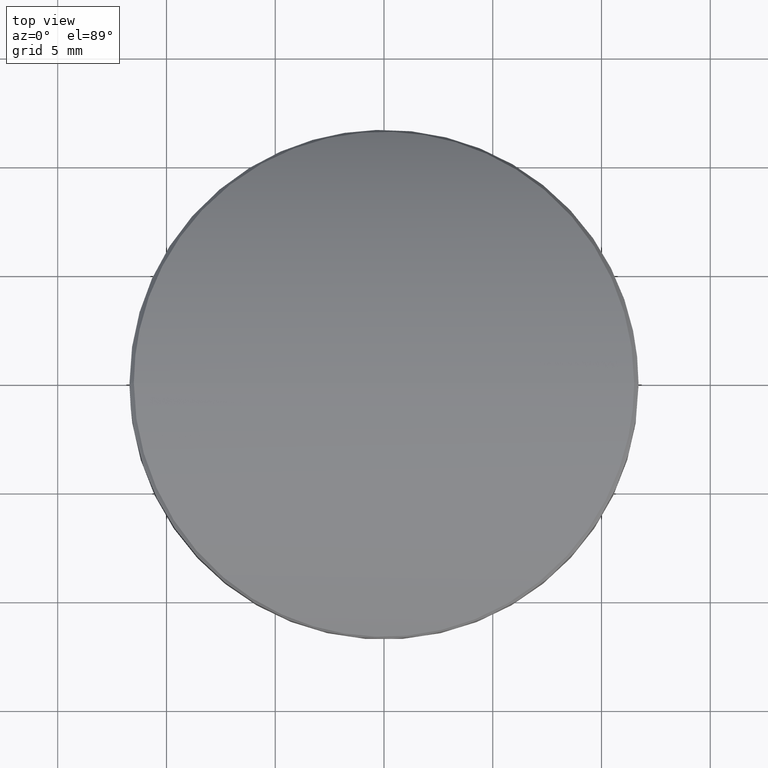
[diagram: clean part render]
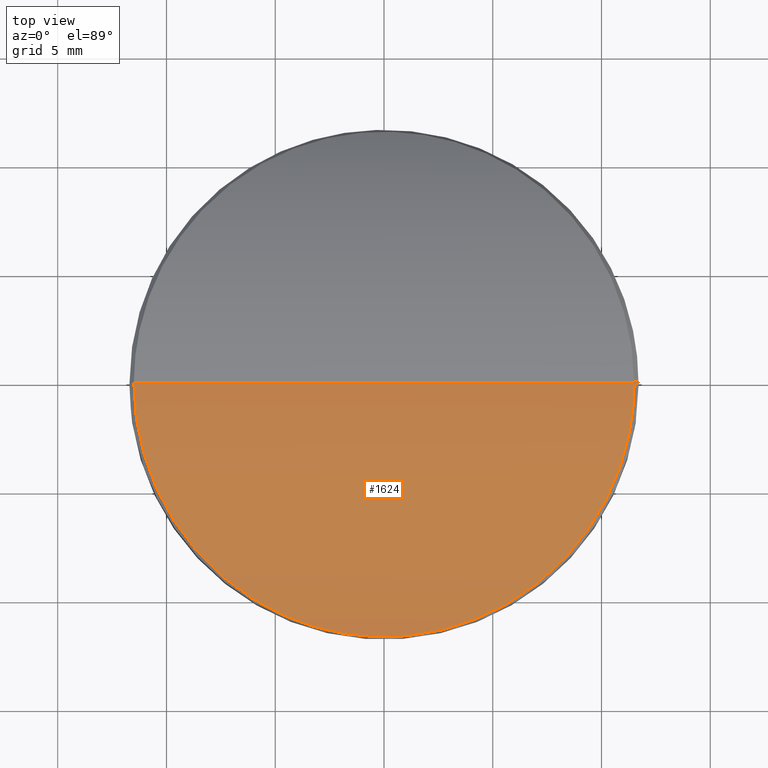
[diagram: same view with one face highlighted and labeled with its STEP entity id]
A machine part, top view. The second image highlights one B-rep face of the part: STEP entity #1624.
In plain terms, the highlighted cylindrical surface (partial cylindrical patch) has radius 20.4849 mm, axis along (-1, 0, 0).
Its self-contained STEP definition (entity closure, byte-faithful):
#2 = CARTESIAN_POINT ( 'NONE',  ( 9.737804445119737196, -6.189419995320844414, 5.045349521952244842 ) ) ;
#16 = CARTESIAN_POINT ( 'NONE',  ( 11.49514623045189943, -0.3897456860886028274, 5.997216948550786242 ) ) ;
#29 = CARTESIAN_POINT ( 'NONE',  ( 4.112180405916246784, -10.84594626258480687, 2.893189815696518341 ) ) ;
#131 = CARTESIAN_POINT ( 'NONE',  ( -4.116549120344358492, -10.84549453037386257, 2.893593186022212382 ) ) ;
#148 = CARTESIAN_POINT ( 'NONE',  ( -10.20541013525669349, -5.356513521056880833, 5.288029129125095373 ) ) ;
#162 = CARTESIAN_POINT ( 'NONE',  ( -5.800094741857890313, -10.02986431019209057, 3.376934144801301052 ) ) ;
#177 = CARTESIAN_POINT ( 'NONE',  ( -9.743974379397970509, -6.170845594421725977, 5.049168929363084146 ) ) ;
#190 = CARTESIAN_POINT ( 'NONE',  ( -5.637557573025075541, -10.12393487990159358, 3.323735479469065890 ) ) ;
#204 = CARTESIAN_POINT ( 'NONE',  ( 10.52307695336892479, -4.687957729230389781, 5.457167386574089285 ) ) ;
#218 = CARTESIAN_POINT ( 'NONE',  ( 5.784570927955349440, -10.03898724975891632, 3.371803734286531462 ) ) ;
#242 = CARTESIAN_POINT ( 'NONE',  ( 7.444340850832108281, -8.853782057287496343, 3.988298050666097438 ) ) ;
#254 = CARTESIAN_POINT ( 'NONE',  ( 8.378634050526294175, -7.963416024363239920, 4.390929691711327187 ) ) ;
#347 = CARTESIAN_POINT ( 'NONE',  ( -11.19609419047052512, -2.679953526936052377, 5.827483716367699351 ) ) ;
#364 = CARTESIAN_POINT ( 'NONE',  ( -3.852375375386389411, -10.94279639809757754, 2.832362311124243082 ) ) ;
#377 = CARTESIAN_POINT ( 'NONE',  ( -1.347739333475969525, -11.53496199786398435, 2.443657922325293441 ) ) ;
#391 = CARTESIAN_POINT ( 'NONE',  ( -10.87883599301318860, -3.784711054351729498, 5.650783541617330208 ) ) ;
#406 = CARTESIAN_POINT ( 'NONE',  ( -4.293467122561983373, -10.77529566419284812, 2.937248383663050522 ) ) ;
#419 = CARTESIAN_POINT ( 'NONE',  ( 10.19813177489950995, -5.370601244891645365, 5.284199096203690438 ) ) ;
#430 = FACE_OUTER_BOUND ( 'NONE', #1005, .T. ) ;
#433 = CARTESIAN_POINT ( 'NONE',  ( 11.47573422807531962, -0.7788870904442498633, 5.986112444171529212 ) ) ;
#457 = CARTESIAN_POINT ( 'NONE',  ( 4.630532278980312277, -10.63074787590414338, 3.025671985755645998 ) ) ;
#468 = CARTESIAN_POINT ( 'NONE',  ( 2.476755019777808986, -11.34250499399247403, 2.573253834620946812 ) ) ;
#492 = DIRECTION ( 'NONE',  ( -1.000000000000000000, 0.000000000000000000, 0.000000000000000000 ) ) ;
#520 = ORIENTED_EDGE ( 'NONE', *, *, #561, .T. ) ;
#533 = DIRECTION ( 'NONE',  ( -1.000000000000000000, 0.000000000000000000, 0.000000000000000000 ) ) ;
#535 = ORIENTED_EDGE ( 'NONE', *, *, #657, .T. ) ;
#561 = EDGE_CURVE ( 'NONE', #2294, #770, #768, .T. ) ;
#563 = CARTESIAN_POINT ( 'NONE',  ( -10.33285361000057101, -5.103895506039942020, 5.355348532133681339 ) ) ;
#566 = B_SPLINE_CURVE_WITH_KNOTS ( 'NONE', 3,
 ( #2118, #2384, #2134, #1278, #1679, #627, #2399, #1512, #347, #1291, #391, #1899, #2165, #1914, #2827, #563, #148, #2354, #2179, #177, #1029, #2338, #1059, #799, #2370, #1943, #2797, #1710, #579, #2813, #2841, #162, #190, #2594, #816, #406, #131, #364, #1015, #2577, #612, #1073, #847, #1955, #1231, #1725, #1696, #2855, #1463, #1247, #377, #2609, #2624, #596, #1480, #1262, #1664, #2150, #1042, #1928, #833, #1495, #2691, #1739, #468, #1139, #1356, #668, #901, #1572, #1550, #1969, #2653, #29, #639, #2679, #2232, #457, #1538, #2413, #913, #692, #1767, #218, #1998, #2665, #2441, #1779, #242, #1524, #2243, #681, #254, #2870, #2464, #1127, #2, #1791, #419, #1306, #1345, #204, #2638, #877, #2021, #1754, #2193, #861, #1561, #1984, #2427, #1089, #1320, #654, #433, #16, #2209, #890 ),
 .UNSPECIFIED., .F., .F.,
 ( 4, 2, 2, 1, 2, 2, 2, 2, 1, 2, 2, 2, 2, 2, 2, 2, 2, 2, 2, 2, 2, 2, 2, 2, 2, 2, 2, 2, 1, 2, 2, 2, 2, 2, 2, 2, 2, 2, 2, 2, 2, 2, 2, 2, 2, 2, 2, 2, 2, 2, 2, 2, 2, 2, 1, 2, 2, 2, 2, 2, 4 ),
 ( 0.000000000000000000, 0.01562327146530291359, 0.01952908933162864763, 0.02343490719795437646, 0.03124654293060585494, 0.04686981439590876680, 0.06249308586121168213, 0.06639890372753738668, 0.07030472159386311204, 0.07811635732651450725, 0.08592799305916591635, 0.09373962879181731156, 0.1249861717224228369, 0.1406094431877255857, 0.1562327146530283206, 0.1601385325193540321, 0.1640443503856797436, 0.1718559861183310555, 0.1874792575836336794, 0.1952908933162850191, 0.1991967111826107029, 0.2031025290489363866, 0.2070083469152620426, 0.2109141647815877263, 0.2187258005142390660, 0.2265374362468904057, 0.2343490719795417454, 0.2382548898458674291, 0.2421607077121931129, 0.2499723434448444526, 0.2577839791774957923, 0.2655956149101471042, 0.2734072506427984717, 0.2812188863754498391, 0.2890305221081011511, 0.2968421578407525185, 0.3007479757070781745, 0.3046537935734038860, 0.3085596114397295420, 0.3124654293060551979, 0.3163712471723808539, 0.3202770650387065654, 0.3280887007713579329, 0.3359003365040093003, 0.3437119722366606123, 0.3593352437019632917, 0.3671468794346145481, 0.3749585151672658601, 0.3905817866325684840, 0.4062050580978711634, 0.4218283295631737873, 0.4296399652958251547, 0.4374516010284764667, 0.4413574188948021226, 0.4452632367611278341, 0.4530748724937791461, 0.4608865082264305135, 0.4686981439590818255, 0.4843214154243845604, 0.4921330511570358723, 0.4999446868896872398 ),
 .UNSPECIFIED. ) ;
#579 = CARTESIAN_POINT ( 'NONE',  ( -6.274293241002236066, -9.733073229370830859, 3.540125932539435194 ) ) ;
#582 = VECTOR ( 'NONE', #533, 1000.000000000000000 ) ;
#596 = CARTESIAN_POINT ( 'NONE',  ( -0.7731625948763044542, -11.58752027344114488, 2.407711443938512108 ) ) ;
#612 = CARTESIAN_POINT ( 'NONE',  ( -3.491745359489101475, -11.06552875812709047, 2.754186272141699643 ) ) ;
#627 = CARTESIAN_POINT ( 'NONE',  ( -11.39813444535475107, -1.545344526312993683, 5.941850814944207748 ) ) ;
#639 = CARTESIAN_POINT ( 'NONE',  ( 4.286547131014846634, -10.77687629149981596, 2.936107332575360829 ) ) ;
#654 = CARTESIAN_POINT ( 'NONE',  ( 11.46096369623868227, -0.9753433247013039153, 5.977670176482337894 ) ) ;
#657 = EDGE_CURVE ( 'NONE', #770, #2294, #566, .T. ) ;
#668 = CARTESIAN_POINT ( 'NONE',  ( 3.215185552194478102, -11.15194723031473245, 2.698510391435356315 ) ) ;
#681 = CARTESIAN_POINT ( 'NONE',  ( 7.987955151177865254, -8.356632948324516974, 4.218526614985162126 ) ) ;
#692 = CARTESIAN_POINT ( 'NONE',  ( 5.299392527563545841, -10.30852554656619624, 3.217522559254777370 ) ) ;
#768 = LINE ( 'NONE', #1853, #582 ) ;
#770 = VERTEX_POINT ( 'NONE', #1103 ) ;
#799 = CARTESIAN_POINT ( 'NONE',  ( -7.870381897057889375, -8.475779826942352102, 4.166497957005307562 ) ) ;
#816 = CARTESIAN_POINT ( 'NONE',  ( -4.808699323383976321, -10.55606690870254027, 3.071573076847775585 ) ) ;
#833 = CARTESIAN_POINT ( 'NONE',  ( 1.347212755746822310, -11.53506300589242350, 2.443589372280085659 ) ) ;
#847 = CARTESIAN_POINT ( 'NONE',  ( -3.218041546933298136, -11.14984532757781288, 2.699768126293334625 ) ) ;
#861 = CARTESIAN_POINT ( 'NONE',  ( 11.04255428140671569, -3.248563234183118098, 5.741630315191169842 ) ) ;
#877 = CARTESIAN_POINT ( 'NONE',  ( 10.66875123463950636, -4.336150874972819480, 5.536020060061574988 ) ) ;
#890 = CARTESIAN_POINT ( 'NONE',  ( 11.50000000032585490, -2.706030960202307460E-15, 5.999999999862259514 ) ) ;
#901 = CARTESIAN_POINT ( 'NONE',  ( 3.489887890548806215, -11.06613799721822033, 2.753796015077784709 ) ) ;
#913 = CARTESIAN_POINT ( 'NONE',  ( 5.136580399309588429, -10.39225064665508569, 3.168456831960904996 ) ) ;
#1005 = EDGE_LOOP ( 'NONE', ( #535, #520 ) ) ;
#1015 = CARTESIAN_POINT ( 'NONE',  ( -3.761531093527383351, -10.97498926510979445, 2.811973158818139584 ) ) ;
#1029 = CARTESIAN_POINT ( 'NONE',  ( -9.644723555108274837, -6.327843851576909096, 4.998841317599565848 ) ) ;
#1042 = CARTESIAN_POINT ( 'NONE',  ( 0.7739697530241977930, -11.58871834085678287, 2.406891463310095958 ) ) ;
#1059 = CARTESIAN_POINT ( 'NONE',  ( -8.652188015778046193, -7.686404207212605755, 4.511946784325804316 ) ) ;
#1073 = CARTESIAN_POINT ( 'NONE',  ( -3.311039313019009001, -11.12203327439632083, 2.717785703116409657 ) ) ;
#1089 = CARTESIAN_POINT ( 'NONE',  ( 11.34598231893739850, -1.933165855667500432, 5.912125250843481616 ) ) ;
#1103 = CARTESIAN_POINT ( 'NONE',  ( -11.50000000000000355, -2.508672283492055481E-15, 5.999999999999998224 ) ) ;
#1127 = CARTESIAN_POINT ( 'NONE',  ( 9.319805232235250259, -6.814164610757030616, 4.836246750905399239 ) ) ;
#1139 = CARTESIAN_POINT ( 'NONE',  ( 2.661176793124961470, -11.29981497952578096, 2.601595771935062196 ) ) ;
#1231 = CARTESIAN_POINT ( 'NONE',  ( -2.941818041779741044, -11.22738594378204802, 2.649203596146836759 ) ) ;
#1247 = CARTESIAN_POINT ( 'NONE',  ( -1.537011614345462851, -11.51081264223284606, 2.460107695464380573 ) ) ;
#1262 = CARTESIAN_POINT ( 'NONE',  ( -0.1948833663932888483, -11.61334496367329017, 2.389965484303400611 ) ) ;
#1278 = CARTESIAN_POINT ( 'NONE',  ( -11.43244153175236910, -1.260735473792553796, 5.961397067982271203 ) ) ;
#1291 = CARTESIAN_POINT ( 'NONE',  ( -11.10274541790953506, -3.050335908120864747, 5.775041986760908408 ) ) ;
#1306 = CARTESIAN_POINT ( 'NONE',  ( 10.28392193387417208, -5.201138097744045119, 5.329492438064808546 ) ) ;
#1320 = CARTESIAN_POINT ( 'NONE',  ( 11.40337096351856161, -1.551050113345978643, 5.944812511529945276 ) ) ;
#1345 = CARTESIAN_POINT ( 'NONE',  ( 10.44613208671137095, -4.860304767834975337, 5.415839408966585999 ) ) ;
#1356 = CARTESIAN_POINT ( 'NONE',  ( 3.031881488236253031, -11.20417730072666096, 2.664460685056832645 ) ) ;
#1463 = CARTESIAN_POINT ( 'NONE',  ( -1.914735111656108213, -11.45291204567235077, 2.499295653558446517 ) ) ;
#1480 = CARTESIAN_POINT ( 'NONE',  ( -0.4842303471753808819, -11.60594664640858831, 2.395061775811690108 ) ) ;
#1495 = CARTESIAN_POINT ( 'NONE',  ( 1.534374284186642790, -11.51117379159173382, 2.459862251031796454 ) ) ;
#1512 = CARTESIAN_POINT ( 'NONE',  ( -11.30939340251443248, -2.114415510673038678, 5.891467662127594984 ) ) ;
#1524 = CARTESIAN_POINT ( 'NONE',  ( 7.582298123103954346, -8.733549315209407027, 4.045482843016509733 ) ) ;
#1538 = CARTESIAN_POINT ( 'NONE',  ( 4.799976317660790137, -10.55382315360178147, 3.072142799972156446 ) ) ;
#1550 = CARTESIAN_POINT ( 'NONE',  ( 3.758131431353314067, -10.97617560819175253, 2.811220217216673589 ) ) ;
#1561 = CARTESIAN_POINT ( 'NONE',  ( 11.09483476629627852, -3.061595869331512176, 5.770799176156002908 ) ) ;
#1572 = CARTESIAN_POINT ( 'NONE',  ( 3.578603991443702448, -11.03719530603649801, 2.772345507584891511 ) ) ;
#1608 = DIRECTION ( 'NONE',  ( 0.000000000000000000, 0.000000000000000000, 1.000000000000000000 ) ) ;
#1624 = ADVANCED_FACE ( 'NONE', ( #430 ), #1765, .T. ) ;
#1664 = CARTESIAN_POINT ( 'NONE',  ( 0.1912812596105210594, -11.61342462404958020, 2.389910661342404374 ) ) ;
#1679 = CARTESIAN_POINT ( 'NONE',  ( -11.42186760982447957, -1.354880986475957894, 5.955367538684553708 ) ) ;
#1696 = CARTESIAN_POINT ( 'NONE',  ( -2.477934362122504286, -11.34221689365662300, 2.573444629818233853 ) ) ;
#1710 = CARTESIAN_POINT ( 'NONE',  ( -6.353148239712754552, -9.680757632287697589, 3.568281591797607177 ) ) ;
#1725 = CARTESIAN_POINT ( 'NONE',  ( -2.664534935444754726, -11.29900084655154657, 2.602133847842853953 ) ) ;
#1739 = CARTESIAN_POINT ( 'NONE',  ( 2.100576407641043364, -11.41964984107487702, 2.521705350726654693 ) ) ;
#1754 = CARTESIAN_POINT ( 'NONE',  ( 10.83930376540712537, -3.888018809700267919, 5.629111336063756355 ) ) ;
#1765 = CYLINDRICAL_SURFACE ( 'NONE', #2770, 20.48486376021797284 ) ;
#1767 = CARTESIAN_POINT ( 'NONE',  ( 5.625798624469174669, -10.13059796684189529, 3.319943601342631112 ) ) ;
#1779 = CARTESIAN_POINT ( 'NONE',  ( 7.014142500838570271, -9.210759163550553907, 3.814361410351435833 ) ) ;
#1791 = CARTESIAN_POINT ( 'NONE',  ( 9.931458571747327824, -5.867204405035997716, 5.144802524683073308 ) ) ;
#1853 = CARTESIAN_POINT ( 'NONE',  ( 40.00000000000000000, 0.000000000000000000, 5.999999999999998224 ) ) ;
#1899 = CARTESIAN_POINT ( 'NONE',  ( -10.74893983655504393, -4.146052525977584224, 5.579342218043968238 ) ) ;
#1914 = CARTESIAN_POINT ( 'NONE',  ( -10.52758358191497123, -4.674765095047628272, 5.459660622763841786 ) ) ;
#1928 = CARTESIAN_POINT ( 'NONE',  ( 0.9637151177052284412, -11.57416959985828342, 2.416875856839430625 ) ) ;
#1943 = CARTESIAN_POINT ( 'NONE',  ( -7.032909960130027116, -9.195968198787426218, 3.821758156117796901 ) ) ;
#1955 = CARTESIAN_POINT ( 'NONE',  ( -3.034033823655117867, -11.20233302922830276, 2.665598583581119563 ) ) ;
#1969 = CARTESIAN_POINT ( 'NONE',  ( 3.847654233776215627, -10.94450079934324371, 2.831286279905976588 ) ) ;
#1984 = CARTESIAN_POINT ( 'NONE',  ( 11.18936937638841833, -2.687934348848871391, 5.823761481175903754 ) ) ;
#1998 = CARTESIAN_POINT ( 'NONE',  ( 6.101362631494081867, -9.845878042330403090, 3.479003434394433825 ) ) ;
#2021 = CARTESIAN_POINT ( 'NONE',  ( 10.73831273853429380, -4.157363749027195077, 5.573907887466076794 ) ) ;
#2118 = CARTESIAN_POINT ( 'NONE',  ( -11.50000000000000355, -2.508672283492055481E-15, 5.999999999999998224 ) ) ;
#2134 = CARTESIAN_POINT ( 'NONE',  ( -11.48069701422318190, -0.7769434286025052039, 5.988931257393474539 ) ) ;
#2150 = CARTESIAN_POINT ( 'NONE',  ( 0.3858100511856679127, -11.60850349407702353, 2.393300652516601623 ) ) ;
#2165 = CARTESIAN_POINT ( 'NONE',  ( -10.56415553750867353, -4.589888873618676257, 5.479375337873090501 ) ) ;
#2179 = CARTESIAN_POINT ( 'NONE',  ( -9.936027148471449522, -5.850197095094023858, 5.147582914009077193 ) ) ;
#2190 = CARTESIAN_POINT ( 'NONE',  ( 11.50000000032585490, -2.706030960202307460E-15, 5.999999999862259514 ) ) ;
#2193 = CARTESIAN_POINT ( 'NONE',  ( 10.93024110537191618, -3.615233415049810439, 5.679320156413881548 ) ) ;
#2209 = CARTESIAN_POINT ( 'NONE',  ( 11.49999949144474343, -0.1934346966807853618, 6.000000000000000000 ) ) ;
#2232 = CARTESIAN_POINT ( 'NONE',  ( 4.546701081718500959, -10.66759502606146093, 3.003244295205884207 ) ) ;
#2243 = CARTESIAN_POINT ( 'NONE',  ( 7.855758546465599679, -8.483487359506824532, 4.161290564421898708 ) ) ;
#2294 = VERTEX_POINT ( 'NONE', #2190 ) ;
#2338 = CARTESIAN_POINT ( 'NONE',  ( -9.128104361827572788, -7.103265027987737845, 4.740143879072966193 ) ) ;
#2354 = CARTESIAN_POINT ( 'NONE',  ( -10.02716746964114947, -5.689467045756033237, 5.194808367385043368 ) ) ;
#2370 = CARTESIAN_POINT ( 'NONE',  ( -7.598630116541376545, -8.724929097626656471, 4.050881418818192969 ) ) ;
#2384 = CARTESIAN_POINT ( 'NONE',  ( -11.49999947147433943, -0.3887429294425169823, 5.999999999999997335 ) ) ;
#2399 = CARTESIAN_POINT ( 'NONE',  ( -11.35902638876392245, -1.830592093027129774, 5.919600215779245111 ) ) ;
#2413 = CARTESIAN_POINT ( 'NONE',  ( 4.884372051899291023, -10.51426244313350189, 3.095869105371516827 ) ) ;
#2427 = CARTESIAN_POINT ( 'NONE',  ( 11.23200007034373371, -2.500012270610449505, 5.847763808262592455 ) ) ;
#2441 = CARTESIAN_POINT ( 'NONE',  ( 6.717204780694685518, -9.433743708508570691, 3.700017200311781274 ) ) ;
#2464 = CARTESIAN_POINT ( 'NONE',  ( 9.095680315204516475, -7.116066540447198996, 4.726742452722526799 ) ) ;
#2577 = CARTESIAN_POINT ( 'NONE',  ( -3.581843715590778299, -11.03612416435793087, 2.773030671081597287 ) ) ;
#2594 = CARTESIAN_POINT ( 'NONE',  ( -5.147246718553668110, -10.39194238187609898, 3.169587832419290763 ) ) ;
#2609 = CARTESIAN_POINT ( 'NONE',  ( -1.063215113850469740, -11.56404641504672703, 2.423791172353970680 ) ) ;
#2624 = CARTESIAN_POINT ( 'NONE',  ( -0.9656919304366671231, -11.57277899801312238, 2.417813819935962449 ) ) ;
#2638 = CARTESIAN_POINT ( 'NONE',  ( 10.63225393871368674, -4.426590103103263729, 5.516209235943903444 ) ) ;
#2653 = CARTESIAN_POINT ( 'NONE',  ( 4.026218003558191150, -10.87879894469571163, 2.872638464462769381 ) ) ;
#2665 = CARTESIAN_POINT ( 'NONE',  ( 6.256183370080210082, -9.746291414152475241, 3.533276823733856542 ) ) ;
#2679 = CARTESIAN_POINT ( 'NONE',  ( 4.373451266175297114, -10.74121063411715049, 2.958126267634495932 ) ) ;
#2691 = CARTESIAN_POINT ( 'NONE',  ( 1.912100260522806128, -11.45336094556460083, 2.498992830885487404 ) ) ;
#2770 = AXIS2_PLACEMENT_3D ( 'NONE', #2852, #492, #1608 ) ;
#2797 = CARTESIAN_POINT ( 'NONE',  ( -6.735564198548543047, -9.420333640739441350, 3.706966053034692621 ) ) ;
#2813 = CARTESIAN_POINT ( 'NONE',  ( -6.117415119694409320, -9.834389704550897449, 3.485048511446827479 ) ) ;
#2827 = CARTESIAN_POINT ( 'NONE',  ( -10.45093929804276378, -4.846984774843823729, 5.418508319649896876 ) ) ;
#2841 = CARTESIAN_POINT ( 'NONE',  ( -6.038466896866084177, -9.884020732932695452, 3.457791205732005491 ) ) ;
#2852 = CARTESIAN_POINT ( 'NONE',  ( 40.00000000000000000, 0.000000000000000000, -14.48486376021797639 ) ) ;
#2855 = CARTESIAN_POINT ( 'NONE',  ( -2.104495121895654020, -11.41889183423720766, 2.522213545137000246 ) ) ;
#2870 = CARTESIAN_POINT ( 'NONE',  ( 8.625861251861630663, -7.689554936387809292, 4.504474331707191581 ) ) ;